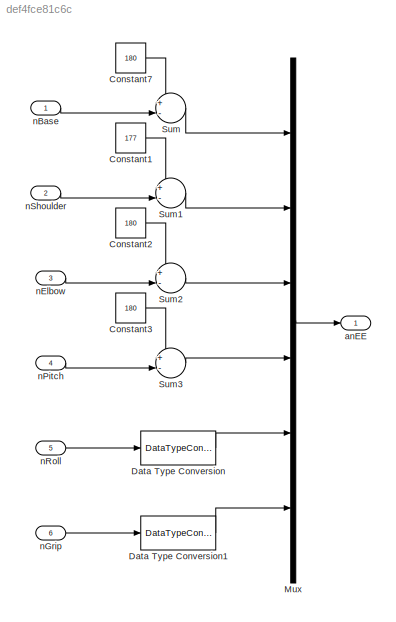
MODEL slx_def4fce81c6c
KIND model
CONFIG AbsTol = auto
CONFIG EnableMultiTasking = on
CONFIG FixedStep = auto
CONFIG MaxStep = auto
CONFIG MinStep = auto
CONFIG RelTol = 1e-3
CONFIG SampleTimeConstraint = Unconstrained
CONFIG SolverName = FixedStepAuto
CONFIG StartTime = 0.0
CONFIG StopTime = inf
BLOCK [Constant] Constant1
  Value = 177
BLOCK [Constant] Constant2
  Value = 180
BLOCK [Constant] Constant3
  Value = 180
BLOCK [Constant] Constant7
  Value = 180
BLOCK [DataTypeConversion] Data Type Conversion
  OutDataTypeStr = double
  RndMeth = Floor
  SaturateOnIntegerOverflow = off
BLOCK [DataTypeConversion] Data Type Conversion1
  OutDataTypeStr = double
  RndMeth = Floor
  SaturateOnIntegerOverflow = off
BLOCK [Mux] Mux
  DisplayOption = bar
  Inputs = 6
  Ports = [6, 1]
BLOCK [Sum] Sum
  Inputs = +-|
  Ports = [2, 1]
BLOCK [Sum] Sum1
  Inputs = +-|
  Ports = [2, 1]
BLOCK [Sum] Sum2
  Inputs = +-|
  Ports = [2, 1]
BLOCK [Sum] Sum3
  Inputs = +-|
  Ports = [2, 1]
BLOCK [Outport] anEE
BLOCK [Inport] nBase
  OutDataTypeStr = int32
BLOCK [Inport] nElbow
  OutDataTypeStr = int32
  Port = 3
BLOCK [Inport] nGrip
  OutDataTypeStr = int32
  Port = 6
BLOCK [Inport] nPitch
  OutDataTypeStr = int32
  Port = 4
BLOCK [Inport] nRoll
  OutDataTypeStr = int32
  Port = 5
BLOCK [Inport] nShoulder
  OutDataTypeStr = int32
  Port = 2
LINE Constant1:1 -> Sum1:1
LINE Constant2:1 -> Sum2:1
LINE Constant3:1 -> Sum3:1
LINE Constant7:1 -> Sum:1
LINE Data Type Conversion1:1 -> Mux:6
LINE Data Type Conversion:1 -> Mux:5
LINE Mux:1 -> anEE:1
LINE Sum1:1 -> Mux:2
LINE Sum2:1 -> Mux:3
LINE Sum3:1 -> Mux:4
LINE Sum:1 -> Mux:1
LINE nBase:1 -> Sum:2
LINE nElbow:1 -> Sum2:2
LINE nGrip:1 -> Data Type Conversion1:1
LINE nPitch:1 -> Sum3:2
LINE nRoll:1 -> Data Type Conversion:1
LINE nShoulder:1 -> Sum1:2
